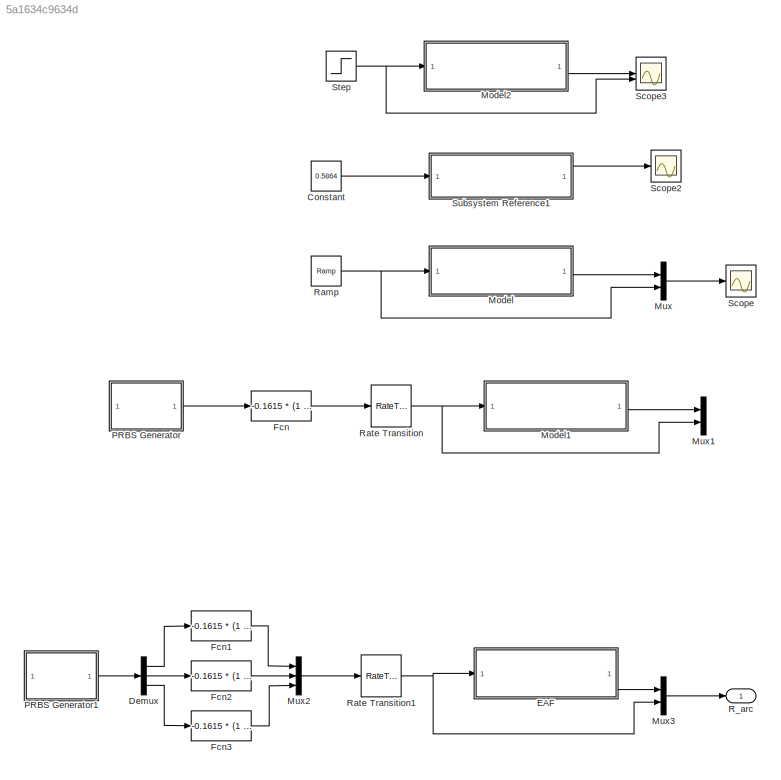
MODEL slx_5a1634c9634d
KIND model
CONFIG AbsTol = auto
CONFIG EnableMultiTasking = off
CONFIG FixedStep = Ts_local
CONFIG MaxStep = auto
CONFIG MinStep = auto
CONFIG RelTol = 1e-3
CONFIG SampleTimeConstraint = Unconstrained
CONFIG SolverName = ode14x
CONFIG StartTime = 0.0
CONFIG StopTime = 2 * seqLen * Ts_ctrl
WORKSPACE source: mxarray member
WORKSPACE seqLen = 511
WORKSPACE seqW = 1
BLOCK [Constant] Constant
  Commented = on
  Value = 0.5864
BLOCK [Demux] Demux
  Outputs = 3
BLOCK [ModelReference] EAF
  ModelNameDialog = EAF.slx
  ModelReferenceVersion = 1.74
BLOCK [Fcn] Fcn
  Commented = on
  Expr = -0.1615 * (1 - u) + 0.1615 * u + u_b
BLOCK [Fcn] Fcn1
  Expr = -0.1615 * (1 - u) + 0.1615 * u + u_b
BLOCK [Fcn] Fcn2
  Expr = -0.1615 * (1 - u) + 0.1615 * u + u_b
BLOCK [Fcn] Fcn3
  Expr = -0.1615 * (1 - u) + 0.1615 * u + u_b
BLOCK [ModelReference] Model
  Commented = on
  ModelNameDialog = gate.slx
  ModelReferenceVersion = 3.11
BLOCK [ModelReference] Model1
  Commented = on
  ModelNameDialog = EAF_single_phase.slx
  ModelReferenceVersion = 1.22
BLOCK [ModelReference] Model2
  Commented = on
  ModelNameDialog = EAF_single_phase.slx
  ModelReferenceVersion = 1.22
BLOCK [Mux] Mux
  Commented = on
  DisplayOption = bar
  Inputs = 2
BLOCK [Mux] Mux1
  Commented = on
  DisplayOption = bar
  Inputs = 2
BLOCK [Mux] Mux2
  DisplayOption = bar
  Inputs = 3
BLOCK [Mux] Mux3
  DisplayOption = bar
  Inputs = 2
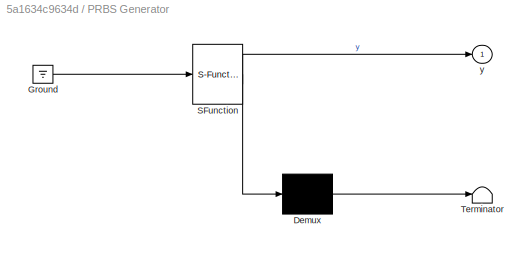
BLOCK [SubSystem] PRBS Generator
  Commented = on
  ErrorFcn = Stateflow.Translate.translate
  PermitHierarchicalResolution = ExplicitOnly
  SFBlockType = MATLAB Function
  SystemSampleTime = Ts_ctrl
  TreatAsAtomicUnit = on
BLOCK [Demux] PRBS Generator/ Demux 
  Outputs = 1
BLOCK [Ground] PRBS Generator/ Ground 
BLOCK [S-Function] PRBS Generator/ SFunction 
  EnableBusSupport = off
  FunctionName = sf_sfun
  Parameters = seqLen,seqW
  PortCounts = [1 2]
  SFcnIsStateOwnerBlock = off
  SFunctionDeploymentMode = off
  Tag = Stateflow S-Function 2
BLOCK [Terminator] PRBS Generator/ Terminator 
BLOCK [Outport] PRBS Generator/y
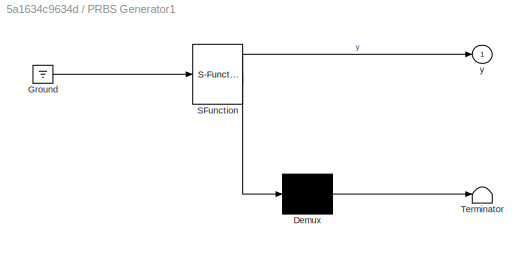
BLOCK [SubSystem] PRBS Generator1
  ErrorFcn = Stateflow.Translate.translate
  PermitHierarchicalResolution = ExplicitOnly
  SFBlockType = MATLAB Function
  SystemSampleTime = Ts_ctrl
  TreatAsAtomicUnit = on
BLOCK [Demux] PRBS Generator1/ Demux 
  Outputs = 1
BLOCK [Ground] PRBS Generator1/ Ground 
BLOCK [S-Function] PRBS Generator1/ SFunction 
  EnableBusSupport = off
  FunctionName = sf_sfun
  Parameters = seqLen,seqW
  PortCounts = [1 2]
  SFcnIsStateOwnerBlock = off
  SFunctionDeploymentMode = off
  Tag = Stateflow S-Function 1
BLOCK [Terminator] PRBS Generator1/ Terminator 
BLOCK [Outport] PRBS Generator1/y
BLOCK [Outport] R_arc
BLOCK [Reference] Ramp  REF=simulink/Sources/Ramp
  Commented = on
  SourceBlock = simulink/Sources/Ramp
  SourceType = Ramp
BLOCK [RateTransition] Rate Transition
  Commented = on
  InitialCondition = u_b
  OutPortSampleTime = Ts_local
BLOCK [RateTransition] Rate Transition1
  InitialCondition = u_b
  OutPortSampleTime = Ts_local
BLOCK [Scope] Scope
  ActiveDisplayYMaximum = 0.0072499999999999995
  ActiveDisplayYMinimum = -0.00525
  Commented = on
  Floating = off
  GraphicalSettings = {"Style":{"BackgroundColor":[0.12941176470588237,0.12941176470588237,0.12941176470588237],"AxesColor":[0.07058823529411765,0.07058823529411765,0.07058823529411765],"LabelsColor":[0.8509803921568627,0.8509803921568627,0.8509803921568627],"PreserveColors":false,"Visible":[true,false],"LineStyle":["-","-"],"LineWidth":[1.5,1.5],"BarWidth":[0.9,0.9],"LineColor":["auto","auto"],"LineFaceAlpha":[1,1],"L...<+2095ch>
  MultipleDisplayCache = [{"MaxYLimMag":0.0072499999999999995,"MaxYLimReal":0.0072499999999999995,"MinYLimMag":0,"MinYLimReal":-0.00525,"PlotAsMagnitudePhase":false,"ShowGrid":true,"ShowLegend":true,"Title":"%<SignalLabel>","YLabel":""}]
  NumInputPorts = 1
  ScopeFrameLocation = window
  ShowLegend = on
  WasSavedAsWebScope = on
  WindowPosition = [374.000000,160.000000,964.000000,767.000000,]
BLOCK [Scope] Scope2
  ActiveDisplayYMaximum = 0.0072499999999999995
  ActiveDisplayYMinimum = -0.00525
  Commented = on
  DataLoggingVariableName = ScopeData2
  Floating = off
  GraphicalSettings = {"Style":{"BackgroundColor":[0.12941176470588237,0.12941176470588237,0.12941176470588237],"AxesColor":[0.07058823529411765,0.07058823529411765,0.07058823529411765],"LabelsColor":[0.8509803921568627,0.8509803921568627,0.8509803921568627],"PreserveColors":false,"Visible":[true,false],"LineStyle":["-","-"],"LineWidth":[1.5,1.5],"BarWidth":[0.9,0.9],"LineColor":["auto","auto"],"LineFaceAlpha":[1,1],"L...<+2095ch>
  MultipleDisplayCache = [{"MaxYLimMag":0.0072499999999999995,"MaxYLimReal":0.0072499999999999995,"MinYLimMag":0,"MinYLimReal":-0.00525,"PlotAsMagnitudePhase":false,"ShowGrid":true,"ShowLegend":true,"Title":"%<SignalLabel>","YLabel":""}]
  NumInputPorts = 1
  ScopeFrameLocation = window
  ShowLegend = on
  WasSavedAsWebScope = on
  WindowPosition = [374.000000,160.000000,964.000000,767.000000,]
BLOCK [Scope] Scope3
  ActiveDisplayYMaximum = 0.027302886231801948
  ActiveDisplayYMinimum = -0.003033654025755771
  Commented = on
  DataLoggingVariableName = ScopeData3
  Floating = off
  GraphicalSettings = {"Style":{"BackgroundColor":[0.12941176470588237,0.12941176470588237,0.12941176470588237],"AxesColor":[0.07058823529411765,0.07058823529411765,0.07058823529411765],"LabelsColor":[0.8509803921568627,0.8509803921568627,0.8509803921568627],"PreserveColors":false,"Visible":[true,true],"LineStyle":["-","-"],"LineWidth":[1.5,1.5],"BarWidth":[0.9,0.9],"LineColor":["auto","auto"],"LineFaceAlpha":[1,1],"Li...<+2412ch>
  LayoutDimensionsString = [2,1]
  MultipleDisplayCache = [{"MaxYLimMag":0.027302886231801948,"MaxYLimReal":0.027302886231801948,"MinYLimMag":0,"MinYLimReal":-0.003033654025755771,"PlotAsMagnitudePhase":false,"ShowGrid":true,"ShowLegend":false,"Title":"%<SignalLabel>","YLabel":""},{"MaxYLimMag":0.77540000000000009,"MaxYLimReal":0.77540000000000009,"MinYLimMag":0.56540000000000012,"MinYLimReal":0.56540000000000012,"PlotAsMagnitudePhase":false,"ShowGrid":t...<+61ch>
  NumInputPorts = 2
  ScopeFrameLocation = window
  WasSavedAsWebScope = on
  WindowPosition = [1.000000,49.000000,1707.000000,996.000000,]
BLOCK [Step] Step
  After = u_b + 0.168
  Before = u_b
  Commented = on
  SampleTime = 0
BLOCK [SubSystem] Subsystem Reference1
  Commented = on
  ReferencedSubsystem = Electrode_Hydraulic
LINE Constant:1 -> Subsystem Reference1:1
LINE Demux:1 -> Fcn1:1
LINE Demux:2 -> Fcn2:1
LINE Demux:3 -> Fcn3:1
LINE EAF:2 -> Mux3:1
LINE Fcn1:1 -> Mux2:1
LINE Fcn2:1 -> Mux2:2
LINE Fcn3:1 -> Mux2:3
LINE Fcn:1 -> Rate Transition:1
LINE Model1:1 -> Mux1:1
LINE Model2:1 -> Scope3:1
LINE Model:1 -> Mux:1
LINE Mux2:1 -> Rate Transition1:1
LINE Mux3:1 -> R_arc:1
LINE Mux:1 -> Scope:1
LINE PRBS Generator1:1 -> Demux:1
LINE PRBS Generator:1 -> Fcn:1
NET Ramp:1 -> Model:1, Mux:2
NET Rate Transition1:1 -> EAF:1, Mux3:2
NET Rate Transition:1 -> Model1:1, Mux1:2
NET Step:1 -> Model2:1, Scope3:2
LINE Subsystem Reference1:1 -> Scope2:1
note: NET lines group one-source signal fan-out (src -> all destinations, sorted); 1:1 wires keep LINE
CHART PRBS Generator states=1 transitions=1
  STATE_LABEL 'eML_blk_kernel()'
  STATE_LABEL 'SCRIPT:\nfunction y = fcn(seqLen, seqW)\n% Codegen-friendly PRBS using an LFSR (max-length).\n% Output levels: {0,1}. Each bit is held for seqW samples.\n\npersistent lfsr m hold\n\nif isempty(lfsr)\n    % Choose LFSR order so period >= seqLen\n    m = max(2, ceil(log2(double(seqLen) + 1)));\n    if m > 16\n        m = 16; % limit to supported taps below\n    end\n    lfsr = uint32(1); % non-zero seed\n    hold...<+1552ch>'
CHART PRBS Generator1 states=1 transitions=1
  STATE_LABEL 'eML_blk_kernel()'
  STATE_LABEL 'SCRIPT:\nfunction y = fcn(seqLen, seqW)\n% Codegen-friendly PRBS using LFSRs (max-length).\n% Output levels: {0,1}. Each bit is held for seqW samples.\n% Output is a 3x1 vector of independent PRBS signals.\n\npersistent lfsr m hold\n\nif isempty(lfsr)\n    % Choose LFSR order so period >= seqLen\n    m = max(2, ceil(log2(double(seqLen) + 1)));\n    if m > 16\n        m = 16; % limit to supported taps below\n  ...<+2367ch>'
CHART  states=0 transitions=0
CHART  states=0 transitions=0
